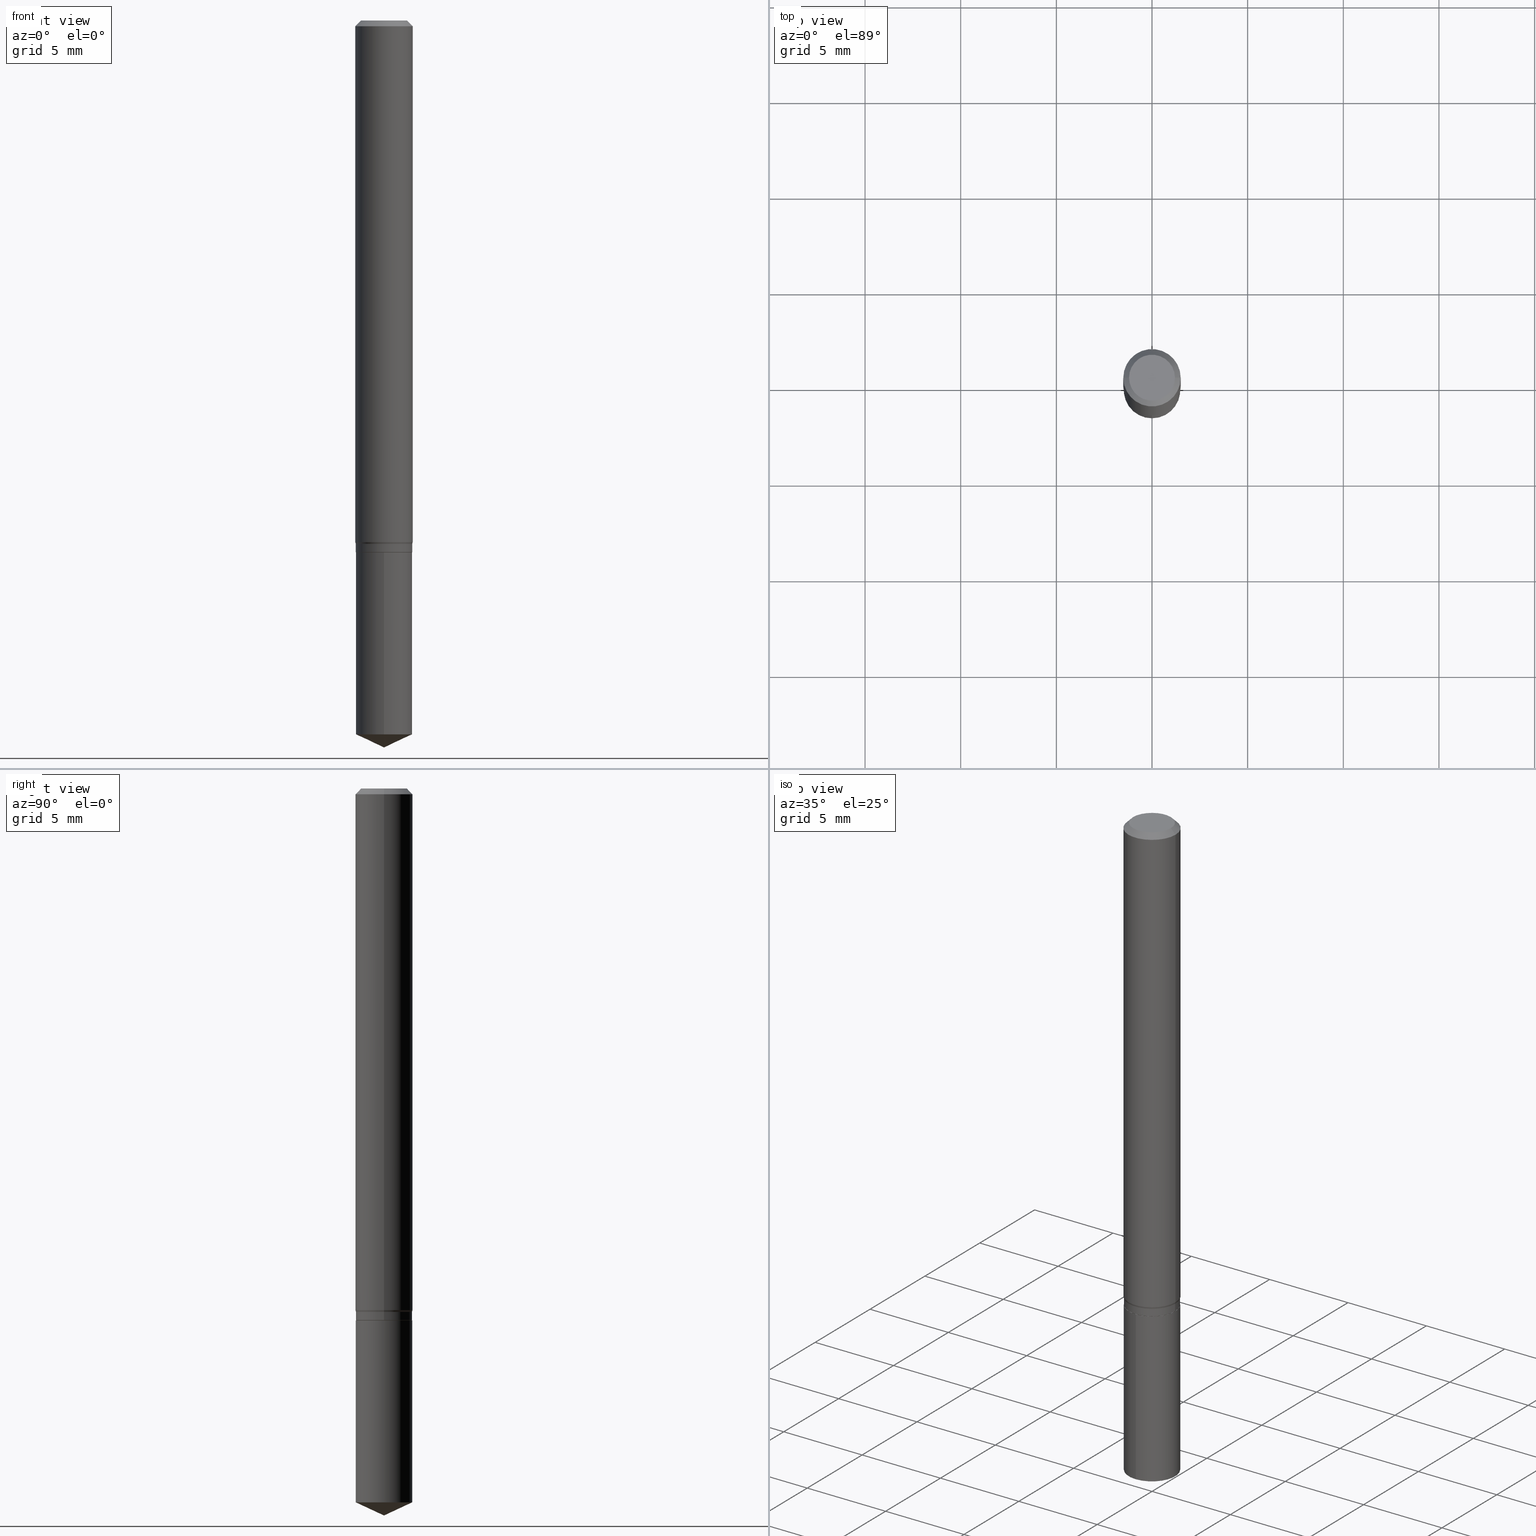
[diagram: canonical four-view strip — front | top / right | iso, engineering-drawing reading convention]
A machine part, canonical four-view strip (front | top / right | iso — engineering-drawing reading convention). The complete STEP part file that produces these views, byte-faithful:
ISO-10303-21;
HEADER;
FILE_DESCRIPTION (( 'STEP AP203' ),
    '1' );
FILE_NAME ('08407.STEP',
    '2024-04-24T14:59:10',
    ( '' ),
    ( '' ),
    'SwSTEP 2.0',
    'SolidWorks 2023',
    '' );
FILE_SCHEMA (( 'CONFIG_CONTROL_DESIGN' ));
ENDSEC;

DATA;
#1 = DIRECTION ( 'NONE',  ( -2.445468806185136597E-29, 3.491481338843145583E-15, 1.000000000000000000 ) ) ;
#2 = PERSON_AND_ORGANIZATION ( #40, #191 ) ;
#3 = PERSON_AND_ORGANIZATION ( #40, #191 ) ;
#4 = FACE_OUTER_BOUND ( 'NONE', #295, .T. ) ;
#5 = EDGE_CURVE ( 'NONE', #299, #416, #326, .T. ) ;
#6 = APPROVAL_ROLE ( '' ) ;
#7 = CARTESIAN_POINT ( 'NONE',  ( -0.05905000000000013016, -3.328068678851369121E-15, -1.073367949192430615 ) ) ;
#8 = CIRCLE ( 'NONE', #128, 0.05804999999999999744 ) ;
#9 = PERSON_AND_ORGANIZATION ( #40, #191 ) ;
#10 = ORIENTED_EDGE ( 'NONE', *, *, #489, .F. ) ;
#11 = APPROVAL_STATUS ( 'not_yet_approved' ) ;
#12 = DIRECTION ( 'NONE',  ( -0.7071067811865353603, 7.493145998870309984E-15, 0.7071067811865595631 ) ) ;
#13 = EDGE_CURVE ( 'NONE', #183, #353, #173, .T. ) ;
#14 = CARTESIAN_POINT ( 'NONE',  ( -0.05805000000000001131, -3.377707509272438191E-15, -1.093999999999999861 ) ) ;
#15 = APPLICATION_CONTEXT ( 'configuration controlled 3d designs of mechanical parts and assemblies' ) ;
#16 = VECTOR ( 'NONE', #78, 39.37007874015748854 ) ;
#17 = AXIS2_PLACEMENT_3D ( 'NONE', #172, #184, #109 ) ;
#18 = CARTESIAN_POINT ( 'NONE',  ( 2.676565608369631794E-29, -3.821426325363822773E-15, -1.094499999999999806 ) ) ;
#19 = CARTESIAN_POINT ( 'NONE',  ( 0.05805000000000001131, -4.225041568134088598E-15, -1.093999999999999861 ) ) ;
#20 = CARTESIAN_POINT ( 'NONE',  ( 3.592427717684202887E-29, -5.129153021169098548E-15, -1.469030840444102815 ) ) ;
#21 = AXIS2_PLACEMENT_3D ( 'NONE', #48, #382, #393 ) ;
#22 = CIRCLE ( 'NONE', #358, 0.04724000000000000421 ) ;
#23 = FACE_OUTER_BOUND ( 'NONE', #33, .T. ) ;
#24 = LOCAL_TIME ( 10, 59, 10.00000000000000000, #425 ) ;
#25 = CARTESIAN_POINT ( 'NONE',  ( -0.05904999999999999832, 3.711095515056362547E-16, -0.01181000000000006350 ) ) ;
#26 = ORIENTED_EDGE ( 'NONE', *, *, #146, .T. ) ;
#27 = FACE_OUTER_BOUND ( 'NONE', #75, .T. ) ;
#28 = ORIENTED_EDGE ( 'NONE', *, *, #137, .F. ) ;
#29 = CARTESIAN_POINT ( 'NONE',  ( 8.265746106709734507E-48, -1.180129479067563789E-33, -3.380025165646692144E-19 ) ) ;
#30 = ORIENTED_EDGE ( 'NONE', *, *, #381, .F. ) ;
#31 = AXIS2_PLACEMENT_3D ( 'NONE', #195, #192, #346 ) ;
#32 = DIRECTION ( 'NONE',  ( -6.982962677686265922E-15, -1.000000000000000000, 2.353012914439503496E-15 ) ) ;
#33 = EDGE_LOOP ( 'NONE', ( #407, #426, #215, #209 ) ) ;
#34 = AXIS2_PLACEMENT_3D ( 'NONE', #69, #377, #99 ) ;
#35 = SECURITY_CLASSIFICATION ( '', '', #454 ) ;
#36 = EDGE_LOOP ( 'NONE', ( #438, #258, #428, #51 ) ) ;
#37 = ADVANCED_FACE ( 'NONE', ( #107 ), #409, .T. ) ;
#38 = DIRECTION ( 'NONE',  ( -6.982962677686265922E-15, -1.000000000000000000, 2.353012914439503496E-15 ) ) ;
#39 = ORIENTED_EDGE ( 'NONE', *, *, #308, .F. ) ;
#40 = PERSON ( 'UNSPECIFIED', 'UNSPECIFIED', 'UNSPECIFIED', ('UNSPECIFIED'), ('UNSPECIFIED'), ('UNSPECIFIED') ) ;
#41 = ORIENTED_EDGE ( 'NONE', *, *, #223, .F. ) ;
#42 = DIRECTION ( 'NONE',  ( 1.000000000000000000, -6.982962677686266711E-15, 4.876176775795936353E-29 ) ) ;
#43 = PERSON_AND_ORGANIZATION ( #40, #191 ) ;
#44 = CONICAL_SURFACE ( 'NONE', #296, 0.05754999999999999699, 0.7853981633974311816 ) ;
#45 = CARTESIAN_POINT ( 'NONE',  ( 0.05905000000000006771, -4.123439461173745257E-16, 2.879382386107503723E-30 ) ) ;
#46 = CC_DESIGN_SECURITY_CLASSIFICATION ( #35, ( #383 ) ) ;
#47 = APPLICATION_PROTOCOL_DEFINITION ( 'international standard', 'config_control_design', 1994, #15 ) ;
#48 = CARTESIAN_POINT ( 'NONE',  ( 4.132873053354867254E-48, -5.900647395337818946E-34, -1.690012582823346072E-19 ) ) ;
#49 = ADVANCED_FACE ( 'NONE', ( #261 ), #229, .T. ) ;
#50 = LINE ( 'NONE', #155, #460 ) ;
#51 = ORIENTED_EDGE ( 'NONE', *, *, #146, .F. ) ;
#52 = ORIENTED_EDGE ( 'NONE', *, *, #137, .T. ) ;
#53 = VECTOR ( 'NONE', #279, 39.37007874015748143 ) ;
#54 = CIRCLE ( 'NONE', #329, 0.05805000000000000437 ) ;
#55 = APPROVAL_DATE_TIME ( #84, #472 ) ;
#56 = EDGE_CURVE ( 'NONE', #336, #338, #378, .T. ) ;
#57 = CARTESIAN_POINT ( 'NONE',  ( 0.000000000000000000, 0.000000000000000000, 0.000000000000000000 ) ) ;
#58 = CARTESIAN_POINT ( 'NONE',  ( 2.675342873966538993E-29, -3.819680584694400481E-15, -1.093999999999999861 ) ) ;
#59 = AXIS2_PLACEMENT_3D ( 'NONE', #367, #105, #333 ) ;
#60 = VECTOR ( 'NONE', #451, 39.37007874015748143 ) ;
#61 = CARTESIAN_POINT ( 'NONE',  ( 2.634014451142010375E-29, -3.760674550067952083E-15, -1.077099999999999946 ) ) ;
#62 = DIRECTION ( 'NONE',  ( -0.2588190451025156880, 5.211531920934515543E-15, 0.9659258262890696445 ) ) ;
#63 = APPLICATION_CONTEXT ( 'configuration controlled 3d designs of mechanical parts and assemblies' ) ;
#64 = CARTESIAN_POINT ( 'NONE',  ( 2.676565608369631794E-29, -3.821426325363822773E-15, -1.094499999999999806 ) ) ;
#65 = AXIS2_PLACEMENT_3D ( 'NONE', #61, #431, #200 ) ;
#66 = FACE_OUTER_BOUND ( 'NONE', #379, .T. ) ;
#67 = ORIENTED_EDGE ( 'NONE', *, *, #201, .T. ) ;
#68 = DIRECTION ( 'NONE',  ( 1.000000000000000000, -6.982962677686262766E-15, 0.000000000000000000 ) ) ;
#69 = CARTESIAN_POINT ( 'NONE',  ( 0.000000000000000000, 0.000000000000000000, 0.000000000000000000 ) ) ;
#70 = ORIENTED_EDGE ( 'NONE', *, *, #473, .T. ) ;
#71 = FACE_OUTER_BOUND ( 'NONE', #483, .T. ) ;
#72 = DIRECTION ( 'NONE',  ( -2.445468806185136597E-29, 3.491481338843145583E-15, 1.000000000000000000 ) ) ;
#73 = ORIENTED_EDGE ( 'NONE', *, *, #263, .T. ) ;
#74 = AXIS2_PLACEMENT_3D ( 'NONE', #198, #245, #402 ) ;
#75 = EDGE_LOOP ( 'NONE', ( #320, #341, #269, #293 ) ) ;
#76 = AXIS2_PLACEMENT_3D ( 'NONE', #432, #247, #292 ) ;
#77 = ORIENTED_EDGE ( 'NONE', *, *, #463, .T. ) ;
#78 = DIRECTION ( 'NONE',  ( 0.7071067811865353603, -2.468850131082130054E-15, 0.7071067811865595631 ) ) ;
#79 = ORIENTED_EDGE ( 'NONE', *, *, #94, .T. ) ;
#80 = PERSON_AND_ORGANIZATION_ROLE ( 'creator' ) ;
#81 = ADVANCED_FACE ( 'NONE', ( #225 ), #185, .F. ) ;
#82 = CIRCLE ( 'NONE', #90, 0.05804999999999999744 ) ;
#83 = APPROVAL_DATE_TIME ( #424, #189 ) ;
#84 = DATE_AND_TIME ( #231, #24 ) ;
#85 = EDGE_LOOP ( 'NONE', ( #291, #161, #248, #179 ) ) ;
#86 = ADVANCED_FACE ( 'NONE', ( #23 ), #44, .T. ) ;
#87 = APPROVAL_STATUS ( 'not_yet_approved' ) ;
#88 = CARTESIAN_POINT ( 'NONE',  ( 0.000000000000000000, 0.000000000000000000, 0.000000000000000000 ) ) ;
#89 = ORIENTED_EDGE ( 'NONE', *, *, #254, .T. ) ;
#90 = AXIS2_PLACEMENT_3D ( 'NONE', #408, #403, #38 ) ;
#91 = CARTESIAN_POINT ( 'NONE',  ( 0.05754999999999999699, -4.223295827464667094E-15, -1.094499999999999806 ) ) ;
#92 = CARTESIAN_POINT ( 'NONE',  ( 0.05904999999999999832, -4.535783407291118600E-16, -0.01181000000000006350 ) ) ;
#93 = DIRECTION ( 'NONE',  ( 1.000000000000000000, -6.982962677686267499E-15, 4.876176775795936353E-29 ) ) ;
#94 = EDGE_CURVE ( 'NONE', #350, #338, #235, .T. ) ;
#95 = VECTOR ( 'NONE', #62, 39.37007874015748143 ) ;
#96 = CARTESIAN_POINT ( 'NONE',  ( 0.04724000000000000421, -3.852183633974369345E-16, -3.380025165621689721E-19 ) ) ;
#97 = DIRECTION ( 'NONE',  ( 1.000000000000000000, -6.982962677686262766E-15, 0.000000000000000000 ) ) ;
#98 = ADVANCED_FACE ( 'NONE', ( #143 ), #176, .T. ) ;
#99 = DIRECTION ( 'NONE',  ( 1.000000000000000000, -6.982962677686267499E-15, 4.876176775795936353E-29 ) ) ;
#100 = LOCAL_TIME ( 10, 59, 10.00000000000000000, #234 ) ;
#101 = DIRECTION ( 'NONE',  ( -2.445358326776455510E-29, 3.491639551644474585E-15, 1.000000000000000000 ) ) ;
#102 = CC_DESIGN_APPROVAL ( #351, ( #383 ) ) ;
#103 = DIRECTION ( 'NONE',  ( 2.445468806185136597E-29, -3.491481338843145583E-15, -1.000000000000000000 ) ) ;
#104 = VERTEX_POINT ( 'NONE', #257 ) ;
#105 = DIRECTION ( 'NONE',  ( -2.445468806185136597E-29, 3.491481338843145583E-15, 1.000000000000000000 ) ) ;
#106 = LINE ( 'NONE', #298, #306 ) ;
#107 = FACE_OUTER_BOUND ( 'NONE', #171, .T. ) ;
#108 = ORIENTED_EDGE ( 'NONE', *, *, #324, .T. ) ;
#109 = DIRECTION ( 'NONE',  ( 1.000000000000000000, -6.982962677686265922E-15, 4.876176775795935793E-29 ) ) ;
#110 = DIRECTION ( 'NONE',  ( -2.445358326776455510E-29, 3.491639551644474585E-15, 1.000000000000000000 ) ) ;
#111 = ADVANCED_FACE ( 'NONE', ( #4 ), #228, .F. ) ;
#112 = ORIENTED_EDGE ( 'NONE', *, *, #420, .T. ) ;
#113 = CONICAL_SURFACE ( 'NONE', #230, 84.42940631927567097, 1.134464013796322002 ) ;
#114 =( CONVERSION_BASED_UNIT ( 'INCH', #144 ) LENGTH_UNIT ( ) NAMED_UNIT ( #216 ) );
#115 = DIRECTION ( 'NONE',  ( -6.982962677686265922E-15, -1.000000000000000000, 2.353012914439503496E-15 ) ) ;
#116 = AXIS2_PLACEMENT_3D ( 'NONE', #58, #471, #361 ) ;
#117 = ORIENTED_EDGE ( 'NONE', *, *, #473, .F. ) ;
#118 = EDGE_CURVE ( 'NONE', #336, #390, #414, .T. ) ;
#119 = COORDINATED_UNIVERSAL_TIME_OFFSET ( 5, 0, .BEHIND. ) ;
#120 = FACE_OUTER_BOUND ( 'NONE', #316, .T. ) ;
#121 = COORDINATED_UNIVERSAL_TIME_OFFSET ( 5, 0, .BEHIND. ) ;
#122 = VECTOR ( 'NONE', #445, 39.37007874015748143 ) ;
#123 = DATE_AND_TIME ( #232, #429 ) ;
#124 = ORIENTED_EDGE ( 'NONE', *, *, #308, .T. ) ;
#125 = DIRECTION ( 'NONE',  ( 1.000000000000000000, 0.000000000000000000, 0.000000000000000000 ) ) ;
#126 = DIRECTION ( 'NONE',  ( -2.445468806185136597E-29, 3.491481338843145583E-15, 1.000000000000000000 ) ) ;
#127 = CARTESIAN_POINT ( 'NONE',  ( 4.124700581087740328E-16, 0.05804999999999487653, -1.469030840444103037 ) ) ;
#128 = AXIS2_PLACEMENT_3D ( 'NONE', #18, #133, #394 ) ;
#129 = PRODUCT ( '08407', '08407', '', ( #421 ) ) ;
#130 = FACE_OUTER_BOUND ( 'NONE', #205, .T. ) ;
#131 = EDGE_CURVE ( 'NONE', #390, #350, #50, .T. ) ;
#132 = DIRECTION ( 'NONE',  ( -2.445468806185136597E-29, 3.491481338843145583E-15, 1.000000000000000000 ) ) ;
#133 = DIRECTION ( 'NONE',  ( -2.445358326776455510E-29, 3.491639551644474585E-15, 1.000000000000000000 ) ) ;
#134 = CC_DESIGN_APPROVAL ( #189, ( #294 ) ) ;
#135 = LOCAL_TIME ( 10, 59, 10.00000000000000000, #121 ) ;
#136 = LINE ( 'NONE', #436, #344 ) ;
#137 = EDGE_CURVE ( 'NONE', #371, #305, #457, .T. ) ;
#138 = DIRECTION ( 'NONE',  ( -2.445468806185136597E-29, 3.491481338843145583E-15, 1.000000000000000000 ) ) ;
#139 = ORIENTED_EDGE ( 'NONE', *, *, #410, .T. ) ;
#140 = DIRECTION ( 'NONE',  ( 1.000000000000000000, -6.982962677686265133E-15, 0.000000000000000000 ) ) ;
#141 = AXIS2_PLACEMENT_3D ( 'NONE', #148, #110, #115 ) ;
#142 = AXIS2_PLACEMENT_3D ( 'NONE', #174, #441, #334 ) ;
#143 = FACE_OUTER_BOUND ( 'NONE', #400, .T. ) ;
#144 = LENGTH_MEASURE_WITH_UNIT ( LENGTH_MEASURE( 0.02539999999999999897 ), #220 );
#145 = CARTESIAN_POINT ( 'NONE',  ( 2.634014451142010375E-29, -3.760674550067952083E-15, -1.077099999999999946 ) ) ;
#146 = EDGE_CURVE ( 'NONE', #151, #371, #243, .T. ) ;
#147 = CARTESIAN_POINT ( 'NONE',  ( -0.04724000000000000421, 3.504923541997677355E-16, -3.380025165670481712E-19 ) ) ;
#148 = CARTESIAN_POINT ( 'NONE',  ( 2.676565608369631794E-29, -3.821426325363822773E-15, -1.094499999999999806 ) ) ;
#149 = ORIENTED_EDGE ( 'NONE', *, *, #360, .T. ) ;
#150 = DIRECTION ( 'NONE',  ( -2.445468806185136597E-29, 3.491481338843145583E-15, 1.000000000000000000 ) ) ;
#151 = VERTEX_POINT ( 'NONE', #7 ) ;
#152 = CYLINDRICAL_SURFACE ( 'NONE', #34, 0.05805000000000001131 ) ;
#153 = PERSON_AND_ORGANIZATION_ROLE ( 'classification_officer' ) ;
#154 = CARTESIAN_POINT ( 'NONE',  ( 0.05805000000000000437, -4.166035533507640200E-15, -1.077099999999999946 ) ) ;
#155 = CARTESIAN_POINT ( 'NONE',  ( -0.05754999999999999699, -3.412508980933885187E-15, -1.094499999999999806 ) ) ;
#156 = CLOSED_SHELL ( 'NONE', ( #430, #98, #239, #37, #81 ) ) ;
#157 = CIRCLE ( 'NONE', #237, 0.05804999999999999744 ) ;
#158 = CARTESIAN_POINT ( 'NONE',  ( 0.05805000000000001131, -4.053609834396879198E-16, 2.830620618349541465E-30 ) ) ;
#159 = PERSON_AND_ORGANIZATION_ROLE ( 'design_owner' ) ;
#160 = CARTESIAN_POINT ( 'NONE',  ( 2.676565608369631794E-29, -3.821426325363822773E-15, -1.094499999999999806 ) ) ;
#161 = ORIENTED_EDGE ( 'NONE', *, *, #131, .T. ) ;
#162 = LINE ( 'NONE', #25, #265 ) ;
#163 = EDGE_CURVE ( 'NONE', #338, #299, #459, .T. ) ;
#164 = DIRECTION ( 'NONE',  ( 1.000000000000000000, -6.982962677686266711E-15, 4.876185090822587894E-29 ) ) ;
#165 = CARTESIAN_POINT ( 'NONE',  ( 2.634014451142010375E-29, -3.760674550067952083E-15, -1.077099999999999946 ) ) ;
#166 = ADVANCED_FACE ( 'NONE', ( #120 ), #313, .T. ) ;
#167 = DIRECTION ( 'NONE',  ( -2.445358326776455510E-29, 3.491639551644474585E-15, 1.000000000000000000 ) ) ;
#168 = AXIS2_PLACEMENT_3D ( 'NONE', #413, #150, #221 ) ;
#169 = AXIS2_PLACEMENT_3D ( 'NONE', #57, #356, #93 ) ;
#170 = DIRECTION ( 'NONE',  ( 2.445468806185136597E-29, -3.491481338843145583E-15, -1.000000000000000000 ) ) ;
#171 = EDGE_LOOP ( 'NONE', ( #259, #193, #481, #411 ) ) ;
#172 = CARTESIAN_POINT ( 'NONE',  ( 2.676565608369631794E-29, -3.821426325363822773E-15, -1.094499999999999806 ) ) ;
#173 = LINE ( 'NONE', #485, #122 ) ;
#174 = CARTESIAN_POINT ( 'NONE',  ( 3.592427717684202887E-29, -5.129153021169098548E-15, -1.469030840444102815 ) ) ;
#175 = ORIENTED_EDGE ( 'NONE', *, *, #480, .T. ) ;
#176 = CONICAL_SURFACE ( 'NONE', #397, 84.42940631927567097, 1.134464013796322002 ) ;
#177 = EDGE_CURVE ( 'NONE', #299, #371, #319, .T. ) ;
#178 = AXIS2_PLACEMENT_3D ( 'NONE', #267, #1, #42 ) ;
#179 = ORIENTED_EDGE ( 'NONE', *, *, #56, .F. ) ;
#180 = ORIENTED_EDGE ( 'NONE', *, *, #5, .F. ) ;
#181 = DIRECTION ( 'NONE',  ( 1.000000000000000000, -6.982962677686266711E-15, 4.876185090822587894E-29 ) ) ;
#182 = ORIENTED_EDGE ( 'NONE', *, *, #288, .F. ) ;
#183 = VERTEX_POINT ( 'NONE', #127 ) ;
#184 = DIRECTION ( 'NONE',  ( -2.438088387897960049E-29, 3.491481338843145188E-15, 1.000000000000000000 ) ) ;
#185 = PLANE ( 'NONE',  #467 ) ;
#186 = PERSON_AND_ORGANIZATION ( #40, #191 ) ;
#187 = CC_DESIGN_APPROVAL ( #472, ( #35 ) ) ;
#188 = EDGE_LOOP ( 'NONE', ( #369, #139 ) ) ;
#189 = APPROVAL ( #11, 'UNSPECIFIED' ) ;
#190 = APPLICATION_PROTOCOL_DEFINITION ( 'international standard', 'config_control_design', 1994, #63 ) ;
#191 = ORGANIZATION ( 'UNSPECIFIED', 'UNSPECIFIED', '' ) ;
#192 = DIRECTION ( 'NONE',  ( -2.445468806185136597E-29, 3.491481338843145583E-15, 1.000000000000000000 ) ) ;
#193 = ORIENTED_EDGE ( 'NONE', *, *, #288, .T. ) ;
#194 = PERSON_AND_ORGANIZATION_ROLE ( 'creator' ) ;
#195 = CARTESIAN_POINT ( 'NONE',  ( 2.624887837309001649E-29, -3.747644164317709009E-15, -1.073367949192430615 ) ) ;
#196 = DIRECTION ( 'NONE',  ( -6.328713451373392256E-15, -0.9063077870366517130, 0.4226182617406955555 ) ) ;
#197 = CC_DESIGN_PERSON_AND_ORGANIZATION_ASSIGNMENT ( #427, #194, ( #294 ) ) ;
#198 = CARTESIAN_POINT ( 'NONE',  ( 2.888098660104662014E-31, -4.123439461173777182E-17, -0.01181000000000006350 ) ) ;
#199 = VECTOR ( 'NONE', #204, 39.37007874015748143 ) ;
#200 = DIRECTION ( 'NONE',  ( 1.000000000000000000, -6.982962677686271444E-15, 0.000000000000000000 ) ) ;
#201 = EDGE_CURVE ( 'NONE', #207, #305, #283, .T. ) ;
#202 = CARTESIAN_POINT ( 'NONE',  ( 3.658744552762151624E-29, -5.223495605393188568E-15, -1.496099999999999985 ) ) ;
#203 = DIRECTION ( 'NONE',  ( 2.445358326776454949E-29, -3.491639551644474585E-15, -1.000000000000000000 ) ) ;
#204 = DIRECTION ( 'NONE',  ( 6.439704144417047708E-15, 0.9063077870366545996, 0.4226182617406892827 ) ) ;
#205 = EDGE_LOOP ( 'NONE', ( #149, #175, #180, #418 ) ) ;
#206 = AXIS2_PLACEMENT_3D ( 'NONE', #370, #103, #337 ) ;
#207 = VERTEX_POINT ( 'NONE', #96 ) ;
#208 = CYLINDRICAL_SURFACE ( 'NONE', #422, 0.05804999999999999744 ) ;
#209 = ORIENTED_EDGE ( 'NONE', *, *, #94, .F. ) ;
#210 = CC_DESIGN_DATE_AND_TIME_ASSIGNMENT ( #465, #270, ( #35 ) ) ;
#211 = CARTESIAN_POINT ( 'NONE',  ( -0.05904999999999999832, -1.474863793998382890E-15, -0.01181000000000006350 ) ) ;
#212 = VERTEX_POINT ( 'NONE', #290 ) ;
#213 = EDGE_CURVE ( 'NONE', #419, #305, #287, .T. ) ;
#214 = DIRECTION ( 'NONE',  ( -2.445468806185136597E-29, 3.491481338843145583E-15, 1.000000000000000000 ) ) ;
#215 = ORIENTED_EDGE ( 'NONE', *, *, #56, .T. ) ;
#216 = DIMENSIONAL_EXPONENTS ( 1.000000000000000000, 0.000000000000000000, 0.000000000000000000, 0.000000000000000000, 0.000000000000000000, 0.000000000000000000, 0.000000000000000000 ) ;
#217 = ORIENTED_EDGE ( 'NONE', *, *, #5, .T. ) ;
#218 = CIRCLE ( 'NONE', #328, 0.05754999999999999699 ) ;
#219 = DESIGN_CONTEXT ( 'detailed design', #15, 'design' ) ;
#220 =( LENGTH_UNIT ( ) NAMED_UNIT ( * ) SI_UNIT ( $, .METRE. ) );
#221 = DIRECTION ( 'NONE',  ( 1.000000000000000000, -6.982962677686271444E-15, 0.000000000000000000 ) ) ;
#222 = EDGE_LOOP ( 'NONE', ( #404, #79, #314, #302 ) ) ;
#223 = EDGE_CURVE ( 'NONE', #375, #419, #162, .T. ) ;
#224 = CARTESIAN_POINT ( 'NONE',  ( -0.05905000000000006771, 4.195754854663396409E-16, -2.904631170795525045E-30 ) ) ;
#225 = FACE_OUTER_BOUND ( 'NONE', #188, .T. ) ;
#226 = EDGE_LOOP ( 'NONE', ( #70, #490, #256, #10 ) ) ;
#227 = APPROVAL_STATUS ( 'not_yet_approved' ) ;
#228 = PLANE ( 'NONE',  #21 ) ;
#229 = CONICAL_SURFACE ( 'NONE', #168, 0.05805000000000000437, 0.2617993877991441898 ) ;
#230 = AXIS2_PLACEMENT_3D ( 'NONE', #359, #401, #327 ) ;
#231 = CALENDAR_DATE ( 2024, 24, 4 ) ;
#232 = CALENDAR_DATE ( 2024, 24, 4 ) ;
#233 = ADVANCED_FACE ( 'NONE', ( #240 ), #335, .T. ) ;
#234 = COORDINATED_UNIVERSAL_TIME_OFFSET ( 5, 0, .BEHIND. ) ;
#235 = CIRCLE ( 'NONE', #59, 0.05805000000000001131 ) ;
#236 = APPROVAL_ROLE ( '' ) ;
#237 = AXIS2_PLACEMENT_3D ( 'NONE', #20, #167, #476 ) ;
#238 = ORIENTED_EDGE ( 'NONE', *, *, #468, .F. ) ;
#239 = ADVANCED_FACE ( 'NONE', ( #395 ), #113, .T. ) ;
#240 = FACE_OUTER_BOUND ( 'NONE', #85, .T. ) ;
#241 = CARTESIAN_POINT ( 'NONE',  ( 4.124700581087739835E-16, 0.05804999999999616023, -1.094500000000000028 ) ) ;
#242 = CYLINDRICAL_SURFACE ( 'NONE', #169, 0.05805000000000001131 ) ;
#243 = CIRCLE ( 'NONE', #31, 0.05905000000000013016 ) ;
#244 = EDGE_CURVE ( 'NONE', #416, #151, #286, .T. ) ;
#245 = DIRECTION ( 'NONE',  ( -2.445468806185136597E-29, 3.491481338843145583E-15, 1.000000000000000000 ) ) ;
#246 = CC_DESIGN_PERSON_AND_ORGANIZATION_ASSIGNMENT ( #392, #153, ( #35 ) ) ;
#247 = DIRECTION ( 'NONE',  ( -2.445468806185136597E-29, 3.491481338843145583E-15, 1.000000000000000000 ) ) ;
#248 = ORIENTED_EDGE ( 'NONE', *, *, #360, .F. ) ;
#249 = CARTESIAN_POINT ( 'NONE',  ( 2.676565608369631794E-29, -3.821426325363822773E-15, -1.094499999999999806 ) ) ;
#250 = PLANE ( 'NONE',  #17 ) ;
#251 = ADVANCED_BREP_SHAPE_REPRESENTATION ( '08407', ( #455, #469, #415 ), #366 ) ;
#252 = APPROVAL_PERSON_ORGANIZATION ( #43, #189, #271 ) ;
#253 = DIRECTION ( 'NONE',  ( -6.982962677686267499E-15, -1.000000000000000000, 3.520397390770398255E-15 ) ) ;
#254 = EDGE_CURVE ( 'NONE', #212, #104, #136, .T. ) ;
#255 = DIRECTION ( 'NONE',  ( 1.000000000000000000, -6.982962677686262766E-15, 0.000000000000000000 ) ) ;
#256 = ORIENTED_EDGE ( 'NONE', *, *, #275, .F. ) ;
#257 = CARTESIAN_POINT ( 'NONE',  ( -4.053609834396517801E-16, -0.05805000000000513222, -1.469030840444102592 ) ) ;
#258 = ORIENTED_EDGE ( 'NONE', *, *, #332, .T. ) ;
#259 = ORIENTED_EDGE ( 'NONE', *, *, #13, .F. ) ;
#260 = FACE_OUTER_BOUND ( 'NONE', #226, .T. ) ;
#261 = FACE_OUTER_BOUND ( 'NONE', #36, .T. ) ;
#262 = VECTOR ( 'NONE', #466, 39.37007874015748143 ) ;
#264 = ORIENTED_EDGE ( 'NONE', *, *, #463, .F. ) ;
#263 = EDGE_CURVE ( 'NONE', #212, #183, #470, .T. ) ;
#265 = VECTOR ( 'NONE', #435, 39.37007874015748854 ) ;
#266 = CIRCLE ( 'NONE', #142, 0.05804999999999999744 ) ;
#267 = CARTESIAN_POINT ( 'NONE',  ( 0.000000000000000000, 0.000000000000000000, 0.000000000000000000 ) ) ;
#268 = CARTESIAN_POINT ( 'NONE',  ( 0.05754999999999999699, -4.223295827464667094E-15, -1.094499999999999806 ) ) ;
#269 = ORIENTED_EDGE ( 'NONE', *, *, #223, .T. ) ;
#270 = DATE_TIME_ROLE ( 'classification_date' ) ;
#271 = APPROVAL_ROLE ( '' ) ;
#272 = DIRECTION ( 'NONE',  ( 0.7071067811865454633, -7.319954787623246579E-15, -0.7071067811865493491 ) ) ;
#273 = CLOSED_SHELL ( 'NONE', ( #233, #281, #166, #352, #347, #364, #49, #396, #376, #111, #387, #86 ) ) ;
#274 = CONICAL_SURFACE ( 'NONE', #206, 0.05904999999999999832, 0.7853981633974456145 ) ;
#275 = EDGE_CURVE ( 'NONE', #278, #353, #8, .T. ) ;
#276 = CARTESIAN_POINT ( 'NONE',  ( 0.05904999999999999832, -4.463468013801466955E-16, -0.01181000000000006350 ) ) ;
#277 = CALENDAR_DATE ( 2024, 24, 4 ) ;
#278 = VERTEX_POINT ( 'NONE', #322 ) ;
#279 = DIRECTION ( 'NONE',  ( -2.445468806185136877E-29, 3.491481338843145188E-15, 1.000000000000000000 ) ) ;
#280 = ORIENTED_EDGE ( 'NONE', *, *, #420, .F. ) ;
#281 = ADVANCED_FACE ( 'NONE', ( #325 ), #391, .T. ) ;
#282 = CIRCLE ( 'NONE', #76, 0.05904999999999999832 ) ;
#283 = LINE ( 'NONE', #276, #433 ) ;
#284 = FACE_OUTER_BOUND ( 'NONE', #486, .T. ) ;
#285 = CARTESIAN_POINT ( 'NONE',  ( 0.05805000000000000437, -4.166035533507640200E-15, -1.077099999999999946 ) ) ;
#286 = LINE ( 'NONE', #365, #95 ) ;
#287 = CIRCLE ( 'NONE', #74, 0.05904999999999999832 ) ;
#288 = EDGE_CURVE ( 'NONE', #183, #104, #157, .T. ) ;
#289 = AXIS2_PLACEMENT_3D ( 'NONE', #330, #138, #164 ) ;
#290 = CARTESIAN_POINT ( 'NONE',  ( 3.658500592690254185E-29, -5.223841933215297403E-15, -1.496099999999999985 ) ) ;
#291 = ORIENTED_EDGE ( 'NONE', *, *, #118, .T. ) ;
#292 = DIRECTION ( 'NONE',  ( 1.000000000000000000, -6.982962677686266711E-15, 0.000000000000000000 ) ) ;
#293 = ORIENTED_EDGE ( 'NONE', *, *, #213, .T. ) ;
#294 = PRODUCT_DEFINITION ( 'UNKNOWN', '', #383, #219 ) ;
#295 = EDGE_LOOP ( 'NONE', ( #108, #112 ) ) ;
#296 = AXIS2_PLACEMENT_3D ( 'NONE', #249, #297, #68 ) ;
#297 = DIRECTION ( 'NONE',  ( -2.445468806185136597E-29, 3.491481338843145583E-15, 1.000000000000000000 ) ) ;
#298 = CARTESIAN_POINT ( 'NONE',  ( -4.053609834396609506E-16, -0.05805000000000382077, -1.094499999999999806 ) ) ;
#299 = VERTEX_POINT ( 'NONE', #285 ) ;
#300 = PRODUCT_RELATED_PRODUCT_CATEGORY ( 'detail', '', ( #129 ) ) ;
#301 = DIRECTION ( 'NONE',  ( -2.445468806185136597E-29, 3.491481338843145583E-15, 1.000000000000000000 ) ) ;
#302 = ORIENTED_EDGE ( 'NONE', *, *, #332, .F. ) ;
#303 = CARTESIAN_POINT ( 'NONE',  ( 0.05905000000000013016, -4.159988110435083929E-15, -1.073367949192430615 ) ) ;
#304 = AXIS2_PLACEMENT_3D ( 'NONE', #160, #126, #349 ) ;
#305 = VERTEX_POINT ( 'NONE', #92 ) ;
#306 = VECTOR ( 'NONE', #484, 39.37007874015748143 ) ;
#307 = APPROVAL_DATE_TIME ( #348, #351 ) ;
#308 = EDGE_CURVE ( 'NONE', #305, #419, #282, .T. ) ;
#309 =( NAMED_UNIT ( * ) SI_UNIT ( $, .STERADIAN. ) SOLID_ANGLE_UNIT ( ) );
#310 = DIRECTION ( 'NONE',  ( -2.445468806185136877E-29, 3.491481338843145188E-15, 1.000000000000000000 ) ) ;
#311 = CIRCLE ( 'NONE', #321, 0.05905000000000013016 ) ;
#312 = DIRECTION ( 'NONE',  ( 0.000000000000000000, 0.000000000000000000, 1.000000000000000000 ) ) ;
#313 = CYLINDRICAL_SURFACE ( 'NONE', #475, 0.05905000000000006771 ) ;
#314 = ORIENTED_EDGE ( 'NONE', *, *, #163, .T. ) ;
#315 = CALENDAR_DATE ( 2024, 24, 4 ) ;
#316 = EDGE_LOOP ( 'NONE', ( #488, #77, #39, #28 ) ) ;
#317 = CC_DESIGN_PERSON_AND_ORGANIZATION_ASSIGNMENT ( #9, #159, ( #129 ) ) ;
#318 = PRODUCT_DEFINITION_SHAPE ( 'NONE', 'NONE',  #294 ) ;
#319 = LINE ( 'NONE', #154, #262 ) ;
#320 = ORIENTED_EDGE ( 'NONE', *, *, #201, .F. ) ;
#321 = AXIS2_PLACEMENT_3D ( 'NONE', #479, #214, #140 ) ;
#322 = CARTESIAN_POINT ( 'NONE',  ( -4.053609834396609506E-16, -0.05805000000000382077, -1.094499999999999806 ) ) ;
#323 = DIRECTION ( 'NONE',  ( 1.000000000000000000, -6.982962677686271444E-15, 0.000000000000000000 ) ) ;
#324 = EDGE_CURVE ( 'NONE', #375, #207, #461, .T. ) ;
#325 = FACE_OUTER_BOUND ( 'NONE', #373, .T. ) ;
#326 = CIRCLE ( 'NONE', #440, 0.05805000000000000437 ) ;
#327 = DIRECTION ( 'NONE',  ( -6.982962677686267499E-15, -1.000000000000000000, 3.520397390770398255E-15 ) ) ;
#328 = AXIS2_PLACEMENT_3D ( 'NONE', #406, #368, #255 ) ;
#329 = AXIS2_PLACEMENT_3D ( 'NONE', #165, #132, #323 ) ;
#330 = CARTESIAN_POINT ( 'NONE',  ( 8.265746106709734507E-48, -1.180129479067563789E-33, -3.380025165646692144E-19 ) ) ;
#331 = ORIENTED_EDGE ( 'NONE', *, *, #118, .F. ) ;
#332 = EDGE_CURVE ( 'NONE', #416, #299, #54, .T. ) ;
#333 = DIRECTION ( 'NONE',  ( 1.000000000000000000, -6.982962677686270655E-15, 0.000000000000000000 ) ) ;
#334 = DIRECTION ( 'NONE',  ( -6.982962677686265922E-15, -1.000000000000000000, 4.706025828879006993E-15 ) ) ;
#335 = CONICAL_SURFACE ( 'NONE', #405, 0.05754999999999999699, 0.7853981633974311816 ) ;
#336 = VERTEX_POINT ( 'NONE', #91 ) ;
#337 = DIRECTION ( 'NONE',  ( -1.000000000000000000, 6.982962677686266711E-15, 0.000000000000000000 ) ) ;
#338 = VERTEX_POINT ( 'NONE', #19 ) ;
#339 = ORIENTED_EDGE ( 'NONE', *, *, #177, .F. ) ;
#340 = CARTESIAN_POINT ( 'NONE',  ( -0.05754999999999999699, -3.409859753759773986E-15, -1.094499999999999806 ) ) ;
#341 = ORIENTED_EDGE ( 'NONE', *, *, #324, .F. ) ;
#342 = DIRECTION ( 'NONE',  ( -2.445358326776455510E-29, 3.491639551644474585E-15, 1.000000000000000000 ) ) ;
#343 = CARTESIAN_POINT ( 'NONE',  ( 2.676565608369631794E-29, -3.821426325363822773E-15, -1.094499999999999806 ) ) ;
#344 = VECTOR ( 'NONE', #196, 39.37007874015748143 ) ;
#345 = CALENDAR_DATE ( 2024, 24, 4 ) ;
#346 = DIRECTION ( 'NONE',  ( 1.000000000000000000, -6.982962677686265133E-15, 0.000000000000000000 ) ) ;
#347 = ADVANCED_FACE ( 'NONE', ( #130 ), #242, .T. ) ;
#348 = DATE_AND_TIME ( #277, #423 ) ;
#349 = DIRECTION ( 'NONE',  ( 1.000000000000000000, -6.982962677686262766E-15, 0.000000000000000000 ) ) ;
#350 = VERTEX_POINT ( 'NONE', #14 ) ;
#351 = APPROVAL ( #227, 'UNSPECIFIED' ) ;
#352 = ADVANCED_FACE ( 'NONE', ( #284 ), #398, .T. ) ;
#353 = VERTEX_POINT ( 'NONE', #241 ) ;
#354 = COORDINATED_UNIVERSAL_TIME_OFFSET ( 5, 0, .BEHIND. ) ;
#355 = DIRECTION ( 'NONE',  ( 1.000000000000000000, -6.982962677686266711E-15, 4.876176775795936353E-29 ) ) ;
#356 = DIRECTION ( 'NONE',  ( -2.445468806185136597E-29, 3.491481338843145583E-15, 1.000000000000000000 ) ) ;
#357 = VECTOR ( 'NONE', #310, 39.37007874015748143 ) ;
#358 = AXIS2_PLACEMENT_3D ( 'NONE', #29, #301, #181 ) ;
#359 = CARTESIAN_POINT ( 'NONE',  ( -9.261532836068574158E-28, 1.322424553111868898E-13, 37.87397874015748300 ) ) ;
#360 = EDGE_CURVE ( 'NONE', #338, #350, #434, .T. ) ;
#361 = DIRECTION ( 'NONE',  ( 1.000000000000000000, -6.982962677686270655E-15, 0.000000000000000000 ) ) ;
#362 = UNCERTAINTY_MEASURE_WITH_UNIT (LENGTH_MEASURE( 1.000000000000000082E-05 ), #114, 'distance_accuracy_value', 'NONE');
#363 = DIRECTION ( 'NONE',  ( -1.000000000000000000, 6.982962677686266711E-15, 0.000000000000000000 ) ) ;
#364 = ADVANCED_FACE ( 'NONE', ( #474 ), #152, .T. ) ;
#365 = CARTESIAN_POINT ( 'NONE',  ( -0.05805000000000000437, -3.348204491959213992E-15, -1.077099999999999946 ) ) ;
#366 =( GEOMETRIC_REPRESENTATION_CONTEXT ( 3 ) GLOBAL_UNCERTAINTY_ASSIGNED_CONTEXT ( ( #362 ) ) GLOBAL_UNIT_ASSIGNED_CONTEXT ( ( #114, #380, #309 ) ) REPRESENTATION_CONTEXT ( 'NONE', 'WORKASPACE' ) );
#367 = CARTESIAN_POINT ( 'NONE',  ( 2.675342873966538993E-29, -3.819680584694400481E-15, -1.093999999999999861 ) ) ;
#368 = DIRECTION ( 'NONE',  ( -2.445468806185136597E-29, 3.491481338843145583E-15, 1.000000000000000000 ) ) ;
#369 = ORIENTED_EDGE ( 'NONE', *, *, #275, .T. ) ;
#370 = CARTESIAN_POINT ( 'NONE',  ( 2.888098660104662014E-31, -4.123439461173777182E-17, -0.01181000000000006350 ) ) ;
#371 = VERTEX_POINT ( 'NONE', #303 ) ;
#372 = CARTESIAN_POINT ( 'NONE',  ( 2.676565608369631794E-29, -3.821426325363822773E-15, -1.094499999999999806 ) ) ;
#373 = EDGE_LOOP ( 'NONE', ( #280, #67, #124, #41 ) ) ;
#374 = VECTOR ( 'NONE', #412, 39.37007874015748143 ) ;
#375 = VERTEX_POINT ( 'NONE', #147 ) ;
#376 = ADVANCED_FACE ( 'NONE', ( #27 ), #274, .T. ) ;
#377 = DIRECTION ( 'NONE',  ( -2.445468806185136597E-29, 3.491481338843145583E-15, 1.000000000000000000 ) ) ;
#378 = LINE ( 'NONE', #268, #16 ) ;
#379 = EDGE_LOOP ( 'NONE', ( #331, #238 ) ) ;
#380 =( NAMED_UNIT ( * ) PLANE_ANGLE_UNIT ( ) SI_UNIT ( $, .RADIAN. ) );
#381 = EDGE_CURVE ( 'NONE', #371, #151, #311, .T. ) ;
#382 = DIRECTION ( 'NONE',  ( 2.438088387897960049E-29, -3.491481338843145188E-15, -1.000000000000000000 ) ) ;
#383 = PRODUCT_DEFINITION_FORMATION_WITH_SPECIFIED_SOURCE ( 'ANY', '', #129, .NOT_KNOWN. ) ;
#384 = APPROVAL_PERSON_ORGANIZATION ( #456, #472, #236 ) ;
#385 = DATE_TIME_ROLE ( 'creation_date' ) ;
#386 = ORIENTED_EDGE ( 'NONE', *, *, #263, .F. ) ;
#387 = ADVANCED_FACE ( 'NONE', ( #66 ), #250, .F. ) ;
#388 = SHAPE_DEFINITION_REPRESENTATION ( #318, #251 ) ;
#389 = DIRECTION ( 'NONE',  ( -2.445468806185136597E-29, 3.491481338843145583E-15, 1.000000000000000000 ) ) ;
#390 = VERTEX_POINT ( 'NONE', #340 ) ;
#391 = CONICAL_SURFACE ( 'NONE', #482, 0.05904999999999999832, 0.7853981633974456145 ) ;
#392 = PERSON_AND_ORGANIZATION ( #40, #191 ) ;
#393 = DIRECTION ( 'NONE',  ( -1.000000000000000000, 6.982962677686265922E-15, -4.876176775795935793E-29 ) ) ;
#394 = DIRECTION ( 'NONE',  ( -6.982962677686265922E-15, -1.000000000000000000, 2.353012914439503496E-15 ) ) ;
#395 = FACE_OUTER_BOUND ( 'NONE', #442, .T. ) ;
#396 = ADVANCED_FACE ( 'NONE', ( #71 ), #437, .T. ) ;
#397 = AXIS2_PLACEMENT_3D ( 'NONE', #478, #101, #253 ) ;
#398 = CONICAL_SURFACE ( 'NONE', #65, 0.05805000000000000437, 0.2617993877991441898 ) ;
#399 = CARTESIAN_POINT ( 'NONE',  ( 2.888098660104662014E-31, -4.123439461173777182E-17, -0.01181000000000006350 ) ) ;
#400 = EDGE_LOOP ( 'NONE', ( #446, #73, #117 ) ) ;
#401 = DIRECTION ( 'NONE',  ( -2.445358326776455510E-29, 3.491639551644474585E-15, 1.000000000000000000 ) ) ;
#402 = DIRECTION ( 'NONE',  ( 1.000000000000000000, -6.982962677686266711E-15, 0.000000000000000000 ) ) ;
#403 = DIRECTION ( 'NONE',  ( -2.445358326776455510E-29, 3.491639551644474585E-15, 1.000000000000000000 ) ) ;
#404 = ORIENTED_EDGE ( 'NONE', *, *, #480, .F. ) ;
#405 = AXIS2_PLACEMENT_3D ( 'NONE', #64, #477, #97 ) ;
#406 = CARTESIAN_POINT ( 'NONE',  ( 2.676565608369631794E-29, -3.821426325363822773E-15, -1.094499999999999806 ) ) ;
#407 = ORIENTED_EDGE ( 'NONE', *, *, #131, .F. ) ;
#408 = CARTESIAN_POINT ( 'NONE',  ( 2.676565608369631794E-29, -3.821426325363822773E-15, -1.094499999999999806 ) ) ;
#409 = CYLINDRICAL_SURFACE ( 'NONE', #141, 0.05804999999999999744 ) ;
#410 = EDGE_CURVE ( 'NONE', #353, #278, #82, .T. ) ;
#411 = ORIENTED_EDGE ( 'NONE', *, *, #410, .F. ) ;
#412 = DIRECTION ( 'NONE',  ( -2.445468806185136877E-29, 3.491481338843145188E-15, 1.000000000000000000 ) ) ;
#413 = CARTESIAN_POINT ( 'NONE',  ( 2.634014451142010375E-29, -3.760674550067952083E-15, -1.077099999999999946 ) ) ;
#414 = CIRCLE ( 'NONE', #304, 0.05754999999999999699 ) ;
#415 = AXIS2_PLACEMENT_3D ( 'NONE', #458, #312, #125 ) ;
#416 = VERTEX_POINT ( 'NONE', #444 ) ;
#417 = LINE ( 'NONE', #487, #60 ) ;
#418 = ORIENTED_EDGE ( 'NONE', *, *, #163, .F. ) ;
#419 = VERTEX_POINT ( 'NONE', #211 ) ;
#420 = EDGE_CURVE ( 'NONE', #207, #375, #22, .T. ) ;
#421 = MECHANICAL_CONTEXT ( 'NONE', #63, 'mechanical' ) ;
#422 = AXIS2_PLACEMENT_3D ( 'NONE', #372, #342, #32 ) ;
#423 = LOCAL_TIME ( 10, 59, 10.00000000000000000, #354 ) ;
#424 = DATE_AND_TIME ( #345, #100 ) ;
#425 = COORDINATED_UNIVERSAL_TIME_OFFSET ( 5, 0, .BEHIND. ) ;
#426 = ORIENTED_EDGE ( 'NONE', *, *, #468, .T. ) ;
#427 = PERSON_AND_ORGANIZATION ( #40, #191 ) ;
#428 = ORIENTED_EDGE ( 'NONE', *, *, #177, .T. ) ;
#429 = LOCAL_TIME ( 10, 59, 10.00000000000000000, #119 ) ;
#430 = ADVANCED_FACE ( 'NONE', ( #260 ), #208, .T. ) ;
#431 = DIRECTION ( 'NONE',  ( -2.445468806185136597E-29, 3.491481338843145583E-15, 1.000000000000000000 ) ) ;
#432 = CARTESIAN_POINT ( 'NONE',  ( 2.888098660104662014E-31, -4.123439461173777182E-17, -0.01181000000000006350 ) ) ;
#433 = VECTOR ( 'NONE', #272, 39.37007874015748854 ) ;
#434 = CIRCLE ( 'NONE', #116, 0.05805000000000001131 ) ;
#435 = DIRECTION ( 'NONE',  ( -0.7071067811865454633, 2.468850131082235761E-15, -0.7071067811865493491 ) ) ;
#436 = CARTESIAN_POINT ( 'NONE',  ( 3.658500592690254185E-29, -5.223841933215297403E-15, -1.496099999999999985 ) ) ;
#437 = CYLINDRICAL_SURFACE ( 'NONE', #178, 0.05905000000000006771 ) ;
#438 = ORIENTED_EDGE ( 'NONE', *, *, #244, .F. ) ;
#439 = DIRECTION ( 'NONE',  ( 6.982962677686265922E-15, 1.000000000000000000, -3.491639551644474585E-15 ) ) ;
#440 = AXIS2_PLACEMENT_3D ( 'NONE', #145, #72, #449 ) ;
#441 = DIRECTION ( 'NONE',  ( -2.445358326776455510E-29, 3.491639551644474585E-15, 1.000000000000000000 ) ) ;
#442 = EDGE_LOOP ( 'NONE', ( #386, #89, #182 ) ) ;
#443 = APPROVAL_PERSON_ORGANIZATION ( #2, #351, #6 ) ;
#444 = CARTESIAN_POINT ( 'NONE',  ( -0.05805000000000000437, -3.377707509272438191E-15, -1.077099999999999946 ) ) ;
#445 = DIRECTION ( 'NONE',  ( -2.445358326776455790E-29, 3.491639551644474585E-15, 1.000000000000000000 ) ) ;
#446 = ORIENTED_EDGE ( 'NONE', *, *, #254, .F. ) ;
#447 = CC_DESIGN_DATE_AND_TIME_ASSIGNMENT ( #123, #385, ( #294 ) ) ;
#448 = LINE ( 'NONE', #224, #374 ) ;
#449 = DIRECTION ( 'NONE',  ( 1.000000000000000000, -6.982962677686271444E-15, 0.000000000000000000 ) ) ;
#450 = ORIENTED_EDGE ( 'NONE', *, *, #213, .F. ) ;
#451 = DIRECTION ( 'NONE',  ( -2.445468806185136877E-29, 3.491481338843145188E-15, 1.000000000000000000 ) ) ;
#452 = ORIENTED_EDGE ( 'NONE', *, *, #244, .T. ) ;
#453 = CC_DESIGN_PERSON_AND_ORGANIZATION_ASSIGNMENT ( #186, #462, ( #383 ) ) ;
#454 = SECURITY_CLASSIFICATION_LEVEL ( 'unclassified' ) ;
#455 = MANIFOLD_SOLID_BREP ( 'Body-Move/Copy2[1]', #156 ) ;
#456 = PERSON_AND_ORGANIZATION ( #40, #191 ) ;
#457 = LINE ( 'NONE', #45, #357 ) ;
#458 = CARTESIAN_POINT ( 'NONE',  ( 0.000000000000000000, 0.000000000000000000, 0.000000000000000000 ) ) ;
#459 = LINE ( 'NONE', #158, #53 ) ;
#460 = VECTOR ( 'NONE', #12, 39.37007874015748854 ) ;
#461 = CIRCLE ( 'NONE', #289, 0.04724000000000000421 ) ;
#462 = PERSON_AND_ORGANIZATION_ROLE ( 'design_supplier' ) ;
#463 = EDGE_CURVE ( 'NONE', #151, #419, #448, .T. ) ;
#464 = CC_DESIGN_PERSON_AND_ORGANIZATION_ASSIGNMENT ( #3, #80, ( #383 ) ) ;
#465 = DATE_AND_TIME ( #315, #135 ) ;
#466 = DIRECTION ( 'NONE',  ( 0.2588190451025156880, 1.565188264969667130E-15, 0.9659258262890696445 ) ) ;
#467 = AXIS2_PLACEMENT_3D ( 'NONE', #343, #203, #439 ) ;
#468 = EDGE_CURVE ( 'NONE', #390, #336, #218, .T. ) ;
#469 = MANIFOLD_SOLID_BREP ( 'Body-Move/Copy2[2]', #273 ) ;
#470 = LINE ( 'NONE', #202, #199 ) ;
#471 = DIRECTION ( 'NONE',  ( -2.445468806185136597E-29, 3.491481338843145583E-15, 1.000000000000000000 ) ) ;
#472 = APPROVAL ( #87, 'UNSPECIFIED' ) ;
#473 = EDGE_CURVE ( 'NONE', #104, #183, #266, .T. ) ;
#474 = FACE_OUTER_BOUND ( 'NONE', #222, .T. ) ;
#475 = AXIS2_PLACEMENT_3D ( 'NONE', #88, #389, #355 ) ;
#476 = DIRECTION ( 'NONE',  ( -6.982962677686265922E-15, -1.000000000000000000, 4.706025828879006993E-15 ) ) ;
#477 = DIRECTION ( 'NONE',  ( -2.445468806185136597E-29, 3.491481338843145583E-15, 1.000000000000000000 ) ) ;
#478 = CARTESIAN_POINT ( 'NONE',  ( -9.261532836068574158E-28, 1.322424553111868898E-13, 37.87397874015748300 ) ) ;
#479 = CARTESIAN_POINT ( 'NONE',  ( 2.624887837309001649E-29, -3.747644164317709009E-15, -1.073367949192430615 ) ) ;
#480 = EDGE_CURVE ( 'NONE', #350, #416, #417, .T. ) ;
#481 = ORIENTED_EDGE ( 'NONE', *, *, #489, .T. ) ;
#482 = AXIS2_PLACEMENT_3D ( 'NONE', #399, #170, #363 ) ;
#483 = EDGE_LOOP ( 'NONE', ( #264, #26, #52, #450 ) ) ;
#484 = DIRECTION ( 'NONE',  ( -2.445358326776455790E-29, 3.491639551644474585E-15, 1.000000000000000000 ) ) ;
#485 = CARTESIAN_POINT ( 'NONE',  ( 4.124700581087648130E-16, 0.05804999999999617410, -1.094500000000000028 ) ) ;
#486 = EDGE_LOOP ( 'NONE', ( #217, #452, #30, #339 ) ) ;
#487 = CARTESIAN_POINT ( 'NONE',  ( -0.05805000000000001131, 4.124700581087382383E-16, -2.855441819892973512E-30 ) ) ;
#488 = ORIENTED_EDGE ( 'NONE', *, *, #381, .T. ) ;
#489 = EDGE_CURVE ( 'NONE', #104, #278, #106, .T. ) ;
#490 = ORIENTED_EDGE ( 'NONE', *, *, #13, .T. ) ;
ENDSEC;
END-ISO-10303-21;
